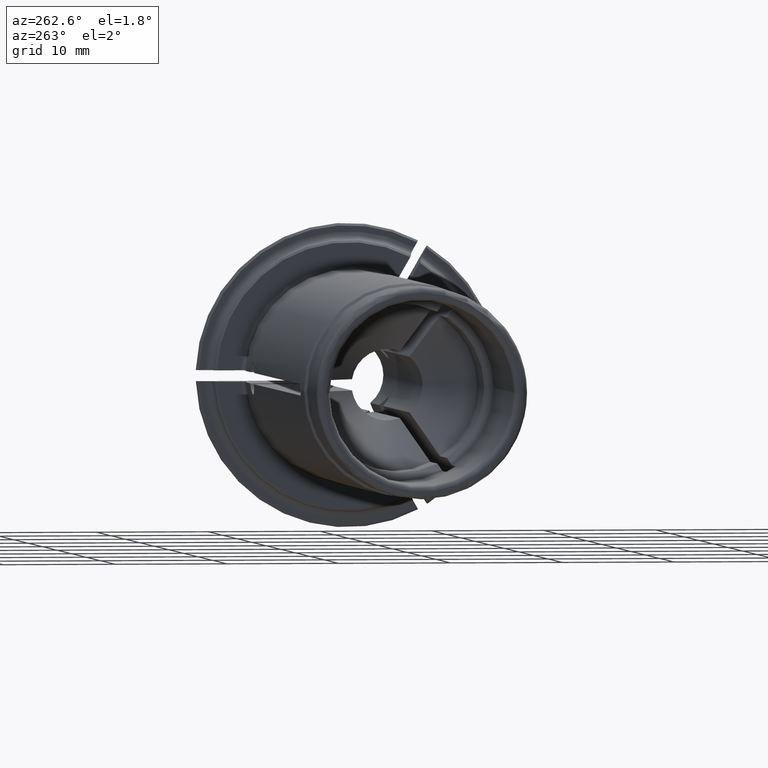
[diagram: clean part render]
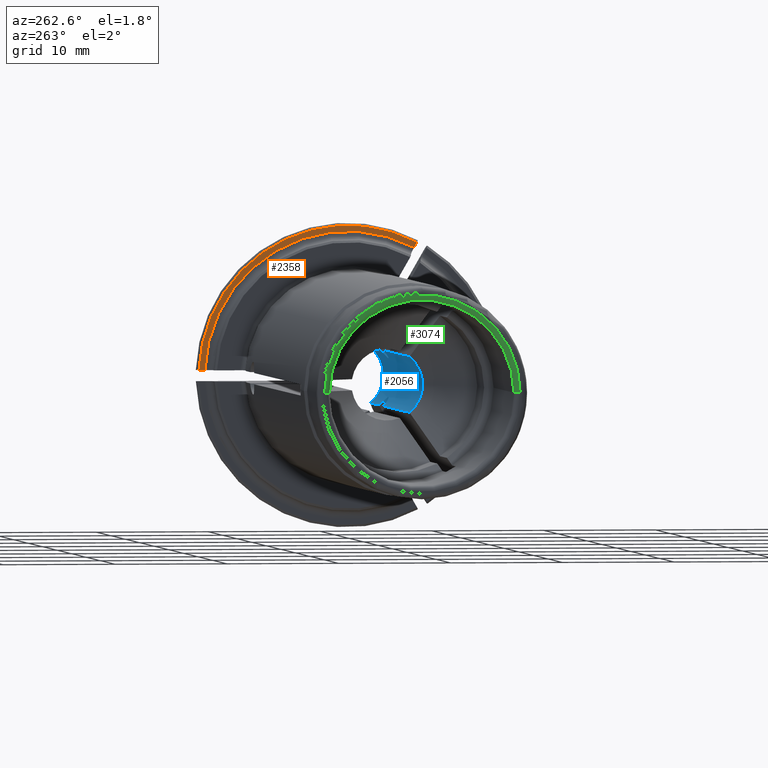
[diagram: same view with three faces highlighted in distinct colors, each labeled with its STEP entity id]
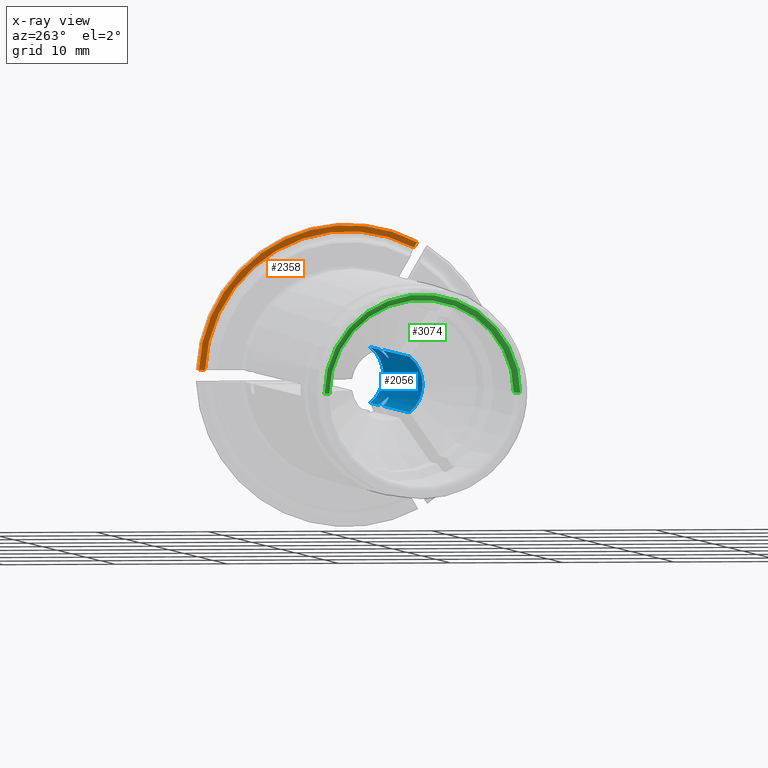
[diagram: x-ray of the same camera — body ghosted, the three highlighted faces saturated]
A machine part, auxiliary view with three faces highlighted in distinct colors.
The next image is the same camera in x-ray (body ghosted, the three faces saturated) — at least one of them is partly hidden behind the body in this view.
Their STEP definitions:

[orange] entity #2358 — the highlighted planar face has unit normal (1, 0, 0).
#577=CARTESIAN_POINT('',(1.E0,0.E0,0.E0));
#578=DIRECTION('',(-1.E0,0.E0,0.E0));
#579=DIRECTION('',(0.E0,-4.670892021385E-1,8.842101996955E-1));
#580=AXIS2_PLACEMENT_3D('',#577,#578,#579);
#642=DIRECTION('',(0.E0,5.E-1,-8.660254037844E-1));
#643=VECTOR('',#642,5.253866665576E-1);
#644=CARTESIAN_POINT('',(1.E0,-6.212286388442E0,1.175999565595E1));
#645=LINE('',#644,#643);
#646=DIRECTION('',(0.E0,-1.E0,0.E0));
#647=VECTOR('',#646,5.253866665576E-1);
#648=CARTESIAN_POINT('',(1.E0,1.329059818067E1,5.E-1));
#649=LINE('',#648,#647);
#693=CARTESIAN_POINT('',(1.E0,0.E0,0.E0));
#694=DIRECTION('',(1.E0,0.E0,0.E0));
#695=DIRECTION('',(0.E0,9.992337780126E-1,3.913894324853E-2));
#696=AXIS2_PLACEMENT_3D('',#693,#694,#695);
#1644=CARTESIAN_POINT('',(1.E0,1.329059818067E1,5.E-1));
#1645=CARTESIAN_POINT('',(1.E0,1.276521151411E1,5.E-1));
#1646=VERTEX_POINT('',#1644);
#1647=VERTEX_POINT('',#1645);
#1737=CARTESIAN_POINT('',(1.E0,-6.212286388442E0,1.175999565595E1));
#1738=CARTESIAN_POINT('',(1.E0,-5.949593055163E0,1.130499745590E1));
#1739=VERTEX_POINT('',#1737);
#1740=VERTEX_POINT('',#1738);
#2345=CARTESIAN_POINT('',(1.E0,0.E0,0.E0));
#2346=DIRECTION('',(1.E0,0.E0,0.E0));
#2347=DIRECTION('',(0.E0,-1.E0,0.E0));
#2348=AXIS2_PLACEMENT_3D('',#2345,#2346,#2347);
#2349=PLANE('',#2348);
#2350=ORIENTED_EDGE('',*,*,#1978,.T.);
#2352=ORIENTED_EDGE('',*,*,#2351,.F.);
#2354=ORIENTED_EDGE('',*,*,#2353,.F.);
#2355=ORIENTED_EDGE('',*,*,#2307,.F.);
#2356=EDGE_LOOP('',(#2350,#2352,#2354,#2355));
#2357=FACE_OUTER_BOUND('',#2356,.F.);
#2358=ADVANCED_FACE('',(#2357),#2349,.F.);
#581=CIRCLE('',#580,1.33E1);
#697=CIRCLE('',#696,1.2775E1);
#1978=EDGE_CURVE('',#1739,#1740,#645,.T.);
#2307=EDGE_CURVE('',#1739,#1646,#581,.T.);
#2351=EDGE_CURVE('',#1647,#1740,#697,.T.);
#2353=EDGE_CURVE('',#1646,#1647,#649,.T.);

[blue] entity #2056 — the highlighted cylindrical surface (edge-blend (fillet) strip) has radius 3.175 mm, axis along (-1, 0, 0).
#163=DIRECTION('',(-1.E0,0.E0,0.E0));
#164=VECTOR('',#163,5.938796236554E0);
#165=CARTESIAN_POINT('',(7.998619954355E-1,-2.000704077769E0,
-2.465321113607E0));
#166=LINE('',#165,#164);
#167=DIRECTION('',(-1.E0,0.E0,0.E0));
#168=VECTOR('',#167,5.938796236554E0);
#169=CARTESIAN_POINT('',(7.998619954355E-1,-2.000704077769E0,2.465321113607E0));
#170=LINE('',#169,#168);
#171=CARTESIAN_POINT('',(-7.861065758882E0,-2.000704077769E0,2.465321113607E0));
#172=CARTESIAN_POINT('',(-7.821693636837E0,-2.084975603502E0,2.396931489131E0));
#173=CARTESIAN_POINT('',(-7.721267064900E0,-2.234744016065E0,2.261363455424E0));
#174=CARTESIAN_POINT('',(-7.507789697230E0,-2.415798653332E0,2.064912761691E0));
#175=CARTESIAN_POINT('',(-7.249569884901E0,-2.545763757836E0,1.900014495007E0));
#176=CARTESIAN_POINT('',(-6.961968325772E0,-2.629266631554E0,1.780851711667E0));
#177=CARTESIAN_POINT('',(-6.652157503225E0,-2.669879719975E0,1.718288760966E0));
#178=CARTESIAN_POINT('',(-6.345681125377E0,-2.669780728060E0,1.718452978274E0));
#179=CARTESIAN_POINT('',(-6.035256069983E0,-2.628677843291E0,1.781723433883E0));
#180=CARTESIAN_POINT('',(-5.748438609646E0,-2.545028184350E0,1.901033680805E0));
#181=CARTESIAN_POINT('',(-5.489541239347E0,-2.414076034412E0,2.066950756817E0));
#182=CARTESIAN_POINT('',(-5.277617832708E0,-2.233272930602E0,2.262762995970E0));
#183=CARTESIAN_POINT('',(-5.177989651207E0,-2.084297717771E0,2.397481619797E0));
#184=CARTESIAN_POINT('',(-5.138934241118E0,-2.000704077769E0,2.465321113607E0));
#186=DIRECTION('',(-1.E0,0.E0,0.E0));
#187=VECTOR('',#186,1.831393424112E1);
#188=CARTESIAN_POINT('',(-7.861065758882E0,-2.000704077769E0,2.465321113607E0));
#189=LINE('',#188,#187);
#190=CARTESIAN_POINT('',(-2.6175E1,0.E0,0.E0));
#191=DIRECTION('',(1.E0,0.E0,0.E0));
#192=DIRECTION('',(0.E0,-6.301430166203E-1,7.764790908998E-1));
#193=AXIS2_PLACEMENT_3D('',#190,#191,#192);
#195=DIRECTION('',(-1.E0,0.E0,0.E0));
#196=VECTOR('',#195,1.831393424112E1);
#197=CARTESIAN_POINT('',(-7.861065758882E0,-2.000704077770E0,
-2.465321113607E0));
#198=LINE('',#197,#196);
#199=CARTESIAN_POINT('',(-5.138934241118E0,-2.000704077770E0,
-2.465321113607E0));
#200=CARTESIAN_POINT('',(-5.178259316088E0,-2.084874904617E0,
-2.397013210197E0));
#201=CARTESIAN_POINT('',(-5.278570591610E0,-2.234519917503E0,
-2.261574173205E0));
#202=CARTESIAN_POINT('',(-5.491731432849E0,-2.415484891211E0,
-2.065282366398E0));
#203=CARTESIAN_POINT('',(-5.750066099274E0,-2.545634512135E0,
-1.900195421188E0));
#204=CARTESIAN_POINT('',(-6.037653527575E0,-2.629192899144E0,
-1.780961667163E0));
#205=CARTESIAN_POINT('',(-6.347701275075E0,-2.669883168861E0,
-1.718284198579E0));
#206=CARTESIAN_POINT('',(-6.654419209990E0,-2.669786095154E0,
-1.718445335484E0));
#207=CARTESIAN_POINT('',(-6.965066125237E0,-2.628614654584E0,
-1.781817512565E0));
#208=CARTESIAN_POINT('',(-7.251866901814E0,-2.544919974731E0,
-1.901185479658E0));
#209=CARTESIAN_POINT('',(-7.510873568121E0,-2.413802618749E0,
-2.067272140741E0));
#210=CARTESIAN_POINT('',(-7.722514364191E0,-2.233086778685E0,
-2.262937145060E0));
#211=CARTESIAN_POINT('',(-7.822049173494E0,-2.084214617938E0,
-2.397549058547E0));
#212=CARTESIAN_POINT('',(-7.861065758882E0,-2.000704077770E0,
-2.465321113607E0));
#300=CARTESIAN_POINT('',(7.998619954355E-1,0.E0,0.E0));
#301=DIRECTION('',(1.E0,0.E0,0.E0));
#302=DIRECTION('',(0.E0,-6.301430166203E-1,7.764790908998E-1));
#303=AXIS2_PLACEMENT_3D('',#300,#301,#302);
#1199=CARTESIAN_POINT('',(-2.6175E1,-2.000704077769E0,-2.465321113607E0));
#1201=CARTESIAN_POINT('',(-2.6175E1,-2.000704077769E0,2.465321113607E0));
#1747=VERTEX_POINT('',#1201);
#1767=CARTESIAN_POINT('',(7.998619954355E-1,-2.000704077769E0,
2.465321113607E0));
#1768=CARTESIAN_POINT('',(-5.138934241118E0,-2.000704077769E0,
2.465321113607E0));
#1769=VERTEX_POINT('',#1767);
#1770=VERTEX_POINT('',#1768);
#1771=CARTESIAN_POINT('',(-7.861065758882E0,-2.000704077769E0,
2.465321113607E0));
#1772=VERTEX_POINT('',#1771);
#1840=VERTEX_POINT('',#1199);
#1855=CARTESIAN_POINT('',(7.998619954355E-1,-2.000704077769E0,
-2.465321113607E0));
#1856=CARTESIAN_POINT('',(-5.138934241118E0,-2.000704077770E0,
-2.465321113607E0));
#1857=VERTEX_POINT('',#1855);
#1858=VERTEX_POINT('',#1856);
#1859=CARTESIAN_POINT('',(-7.861065758882E0,-2.000704077770E0,
-2.465321113607E0));
#1860=VERTEX_POINT('',#1859);
#2033=CARTESIAN_POINT('',(2.E0,0.E0,0.E0));
#2034=DIRECTION('',(-1.E0,0.E0,0.E0));
#2035=DIRECTION('',(0.E0,-1.E0,0.E0));
#2036=AXIS2_PLACEMENT_3D('',#2033,#2034,#2035);
#2037=CYLINDRICAL_SURFACE('',#2036,3.175E0);
#2039=ORIENTED_EDGE('',*,*,#2038,.F.);
#2041=ORIENTED_EDGE('',*,*,#2040,.F.);
#2043=ORIENTED_EDGE('',*,*,#2042,.T.);
#2045=ORIENTED_EDGE('',*,*,#2044,.F.);
#2047=ORIENTED_EDGE('',*,*,#2046,.T.);
#2049=ORIENTED_EDGE('',*,*,#2048,.T.);
#2051=ORIENTED_EDGE('',*,*,#2050,.F.);
#2053=ORIENTED_EDGE('',*,*,#2052,.F.);
#2054=EDGE_LOOP('',(#2039,#2041,#2043,#2045,#2047,#2049,#2051,#2053));
#2055=FACE_OUTER_BOUND('',#2054,.F.);
#2056=ADVANCED_FACE('',(#2055),#2037,.F.);
#185=B_SPLINE_CURVE_WITH_KNOTS('',3,(#171,#172,#173,#174,#175,#176,#177,#178,
#179,#180,#181,#182,#183,#184),.UNSPECIFIED.,.F.,.F.,(4,1,1,1,1,1,1,1,1,1,1,4),(
0.E0,9.090909090909E-2,1.818181818182E-1,2.727272727273E-1,3.636363636364E-1,
4.545454545455E-1,5.454545454545E-1,6.363636363636E-1,7.272727272727E-1,
8.181818181818E-1,9.090909090909E-1,1.E0),.UNSPECIFIED.);
#194=CIRCLE('',#193,3.175E0);
#213=B_SPLINE_CURVE_WITH_KNOTS('',3,(#199,#200,#201,#202,#203,#204,#205,#206,
#207,#208,#209,#210,#211,#212),.UNSPECIFIED.,.F.,.F.,(4,1,1,1,1,1,1,1,1,1,1,4),(
0.E0,9.090909090909E-2,1.818181818182E-1,2.727272727273E-1,3.636363636364E-1,
4.545454545455E-1,5.454545454545E-1,6.363636363636E-1,7.272727272727E-1,
8.181818181818E-1,9.090909090909E-1,1.E0),.UNSPECIFIED.);
#304=CIRCLE('',#303,3.175E0);
#2038=EDGE_CURVE('',#1857,#1858,#166,.T.);
#2040=EDGE_CURVE('',#1769,#1857,#304,.T.);
#2042=EDGE_CURVE('',#1769,#1770,#170,.T.);
#2044=EDGE_CURVE('',#1772,#1770,#185,.T.);
#2046=EDGE_CURVE('',#1772,#1747,#189,.T.);
#2048=EDGE_CURVE('',#1747,#1840,#194,.T.);
#2050=EDGE_CURVE('',#1860,#1840,#198,.T.);
#2052=EDGE_CURVE('',#1858,#1860,#213,.T.);

[green] entity #3074 — the highlighted toroidal blend (fillet) surface has major radius 8.75 mm and minor (blend) radius 0.5 mm.
#1342=CARTESIAN_POINT('',(-5.E1,0.E0,0.E0));
#1343=DIRECTION('',(1.E0,0.E0,0.E0));
#1344=DIRECTION('',(0.E0,1.E0,0.E0));
#1345=AXIS2_PLACEMENT_3D('',#1342,#1343,#1344);
#1408=CARTESIAN_POINT('',(-5.E1,-8.75E0,2.220446049250E-14));
#1409=DIRECTION('',(0.E0,0.E0,-1.E0));
#1410=DIRECTION('',(-1.E0,1.207922650792E-13,0.E0));
#1411=AXIS2_PLACEMENT_3D('',#1408,#1409,#1410);
#1413=CARTESIAN_POINT('',(-5.05E1,0.E0,0.E0));
#1414=DIRECTION('',(1.E0,0.E0,0.E0));
#1415=DIRECTION('',(0.E0,1.E0,0.E0));
#1416=AXIS2_PLACEMENT_3D('',#1413,#1414,#1415);
#1433=CARTESIAN_POINT('',(-5.E1,8.75E0,-2.428612866368E-14));
#1434=DIRECTION('',(0.E0,0.E0,1.E0));
#1435=DIRECTION('',(-1.E0,-1.243449787580E-13,0.E0));
#1436=AXIS2_PLACEMENT_3D('',#1433,#1434,#1435);
#1879=CARTESIAN_POINT('',(-5.05E1,8.75E0,0.E0));
#1880=CARTESIAN_POINT('',(-5.05E1,-8.75E0,0.E0));
#1881=VERTEX_POINT('',#1879);
#1882=VERTEX_POINT('',#1880);
#1883=CARTESIAN_POINT('',(-5.E1,8.25E0,0.E0));
#1884=CARTESIAN_POINT('',(-5.E1,-8.25E0,0.E0));
#1885=VERTEX_POINT('',#1883);
#1886=VERTEX_POINT('',#1884);
#3063=CARTESIAN_POINT('',(-5.E1,0.E0,0.E0));
#3064=DIRECTION('',(-1.E0,0.E0,0.E0));
#3065=DIRECTION('',(0.E0,9.998522983328E-1,-1.718666688422E-2));
#3066=AXIS2_PLACEMENT_3D('',#3063,#3064,#3065);
#3067=TOROIDAL_SURFACE('',#3066,8.75E0,5.E-1);
#3068=ORIENTED_EDGE('',*,*,#3057,.T.);
#3069=ORIENTED_EDGE('',*,*,#3041,.T.);
#3070=ORIENTED_EDGE('',*,*,#2997,.F.);
#3071=ORIENTED_EDGE('',*,*,#3038,.F.);
#3072=EDGE_LOOP('',(#3068,#3069,#3070,#3071));
#3073=FACE_OUTER_BOUND('',#3072,.F.);
#3074=ADVANCED_FACE('',(#3073),#3067,.T.);
#1346=CIRCLE('',#1345,8.25E0);
#1412=CIRCLE('',#1411,5.E-1);
#1417=CIRCLE('',#1416,8.75E0);
#1437=CIRCLE('',#1436,5.E-1);
#2997=EDGE_CURVE('',#1885,#1886,#1346,.T.);
#3038=EDGE_CURVE('',#1881,#1885,#1437,.T.);
#3041=EDGE_CURVE('',#1882,#1886,#1412,.T.);
#3057=EDGE_CURVE('',#1881,#1882,#1417,.T.);